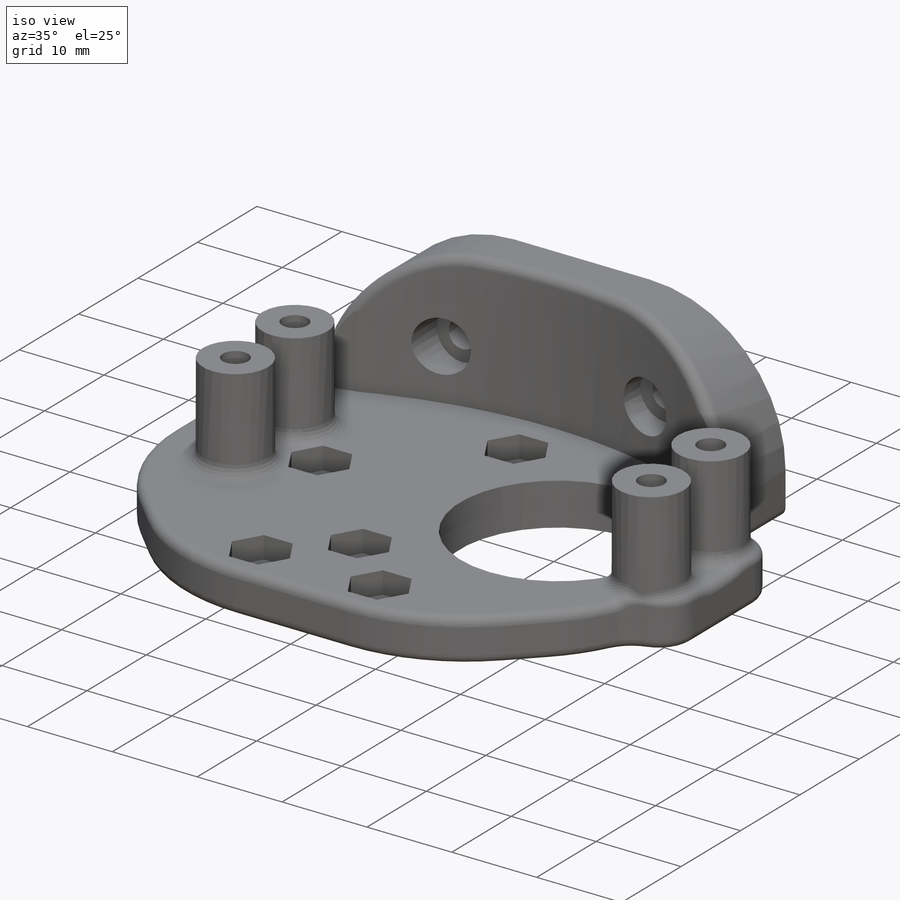
[diagram: iso view]
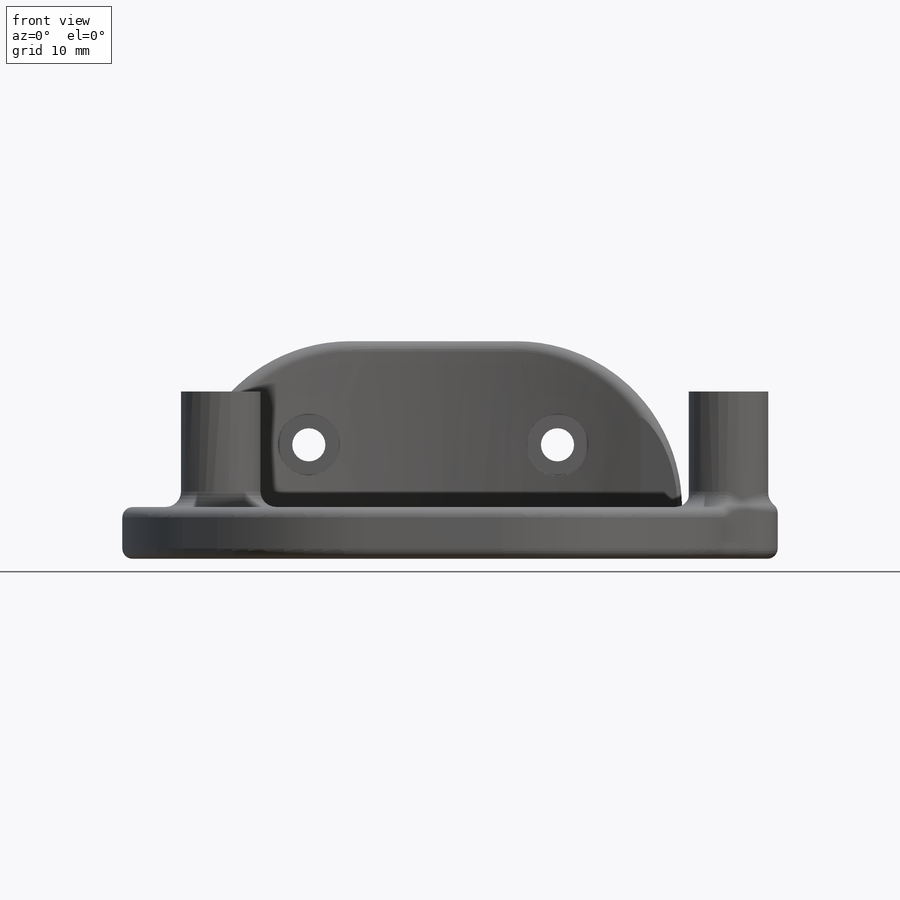
[diagram: front view]
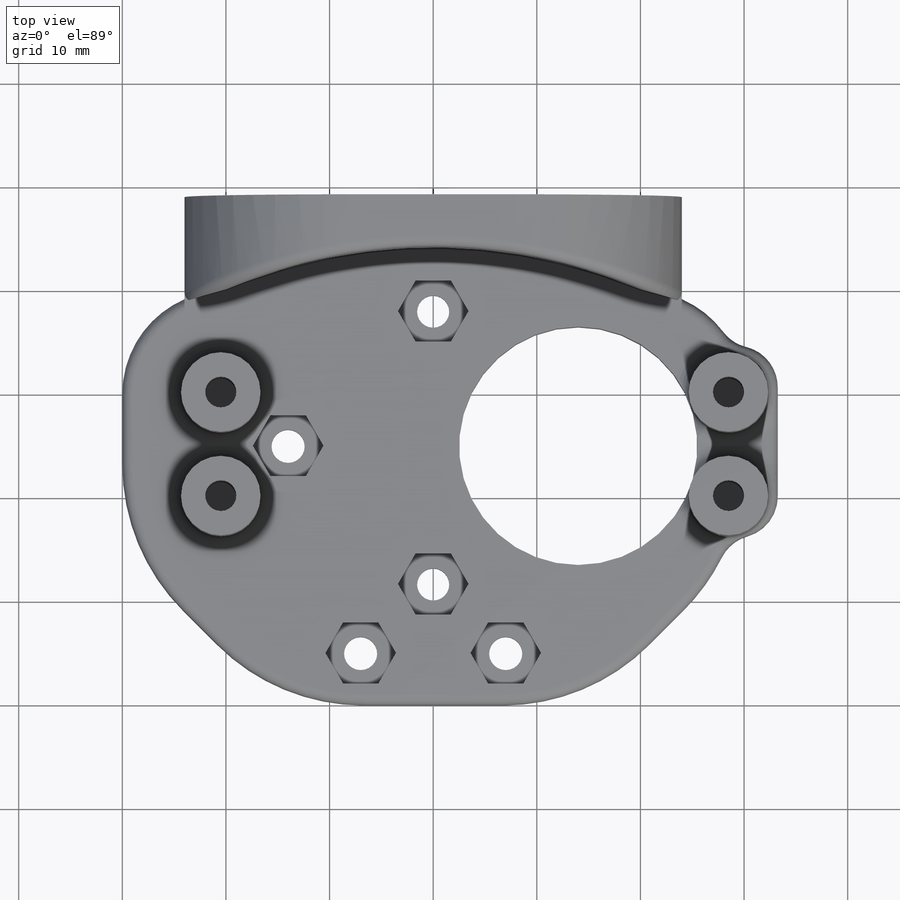
[diagram: top view]
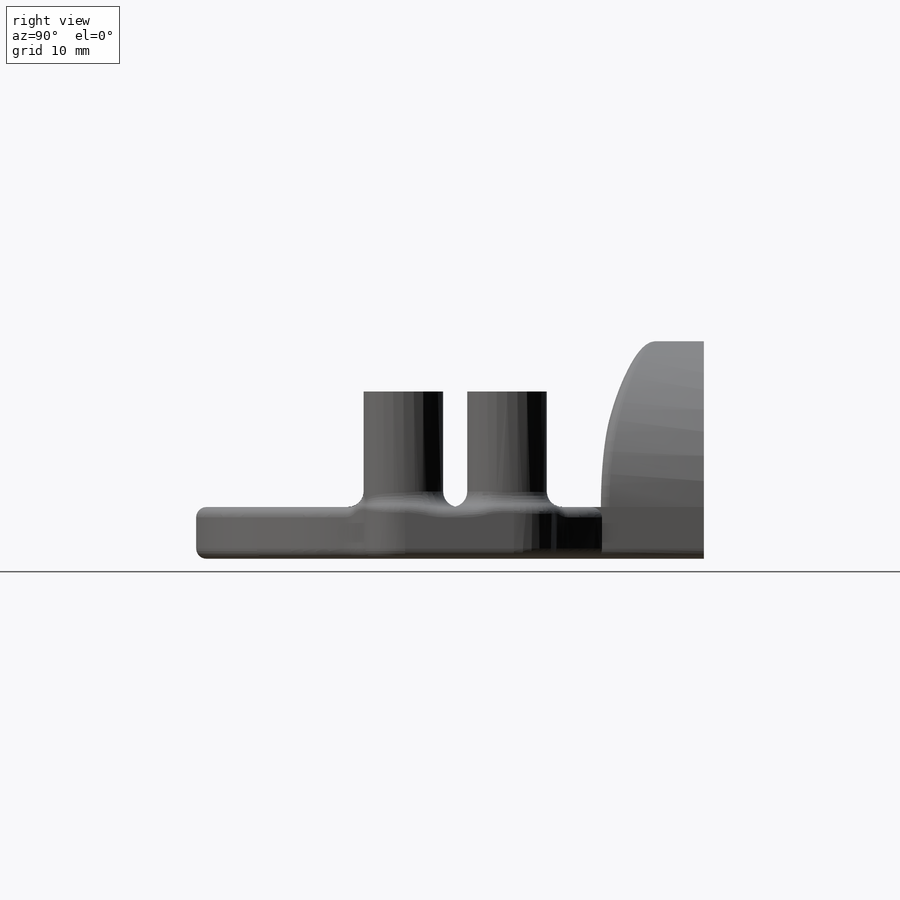
[diagram: right view]
SOLIDWORKS PART (.sldprt)
format: sldprt  version: not decoded by parser v0  size: 838,656 bytes
history: native  units: mm
features: sketch x11, fillet x7, extrude x6, cut_extrude x5, plane x4, material x1 (+9 scaffold rows collapsed)
feature tree (43):
  scaffold x9  (default folders/planes/origin — collapsed)
  material  "Material <sin especificar>"
  plane  "Alzado"
  plane  "Planta"
  plane  "Vista lateral"
  sketch  "Croquis1"  dims[c1.D5=3.2mm c1.D8=15.0mm c1.D10=20.0mm c1.D11=10.0mm c1.D1=60.0mm c1.D2=40.0mm c1.D3=7.0mm c1.D4=20.0mm c1.D6=15.0mm c1.D7=16.0mm c2.D8=15.0mm c2.D9=15.0mm c2.D12=4.0mm]
  extrude  "Saliente-Extruir1"  Depth=5mm
  extrude  "Saliente-Extruir2"  [1 undecoded]
  sketch  "Croquis1<3>"  dims[D1=5.0mm]
  sketch  "Croquis5"  dims[D1=3.1mm D2=5.9mm D3=6.0mm]
  cut_extrude  "Cortar-Extruir3"  Depth=8mm
  sketch  "Croquis6"  dims[D1=5.9mm]
  cut_extrude  "Cortar-Extruir4"  Depth=2.6mm
  sketch  "Croquis7"  dims[D1=23.0mm]
  cut_extrude  "Cortar-Extruir5"  Depth=10mm
  sketch  "Croquis10"  dims[D1=10.0mm D3=20.0mm D2=18.5mm D4=~4.558855mm D5=~4.402794mm]
  extrude  "Saliente-Extruir3"  [1 undecoded]
  sketch  "Croquis11"  dims[c1.D3=3.0mm c1.D1=4.75mm c1.D2=3.84mm c2.D1=4.75mm c2.D4=10.0mm]
  extrude  "Saliente-Extruir4"  Depth=11.15mm
  fillet  "Redondeo1"  Radius=4mm
  fillet  "Redondeo2"  Radius=4mm
  fillet  "Redondeo3"  Radius=1.5mm
  sketch  "Croquis13"  dims[D1=9.5mm D2=20.0mm D3=10.0mm]
  extrude  "Saliente-Extruir5"  Depth=11.15mm
  fillet  "Redondeo4"  Radius=1.5mm
  sketch  "Croquis14"  dims[c1.D1=5.0mm c1.D2=48.0mm c1.D3=10.05mm c2.D1=2.0mm c2.D4=~9.248497mm]
  extrude  "Saliente-Extruir8"  Depth=16mm
  fillet  "Redondeo7"  Radius=16mm
  sketch  "Croquis15"  dims[D3=3.2mm D1=24.0mm D2=11.0mm]
  cut_extrude  "Cortar-Extruir6"  Depth=8mm
  plane  "Plano1"
  sketch  "Croquis16"  dims[D1=6.0mm]
  cut_extrude  "Cortar-Extruir7"  Depth=6mm
  fillet  "Redondeo8"  Radius=1mm
  fillet  "Redondeo9"  Radius=1mm
decode coverage: 27 of 29 modeling features carry decoded parameters
note: ~ marks probable driven/reference dimensions
note: 2 parameter values undecoded
note: suppression state not decoded; provenance and decode notes live in map.json
